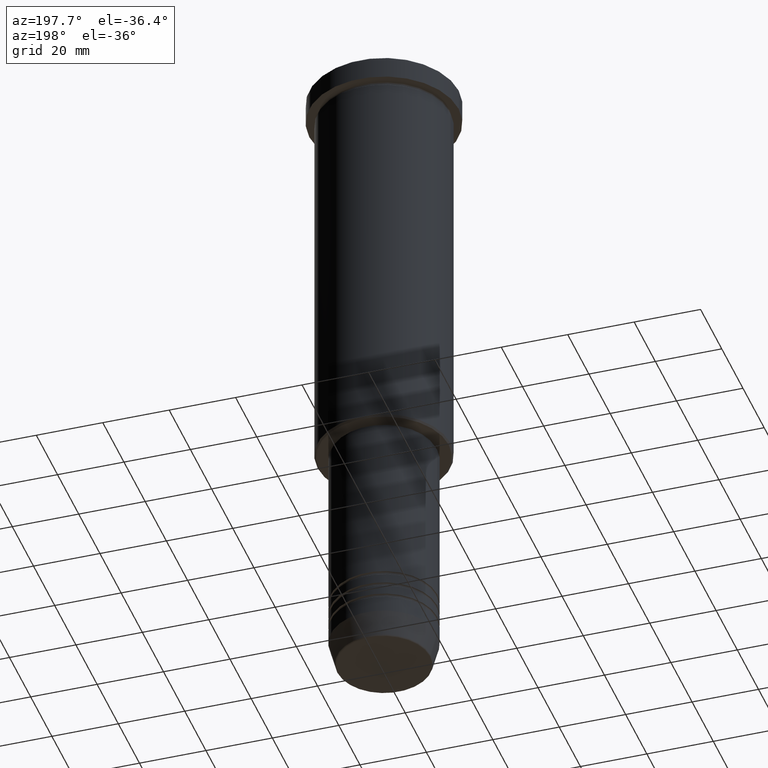
[diagram: clean part render]
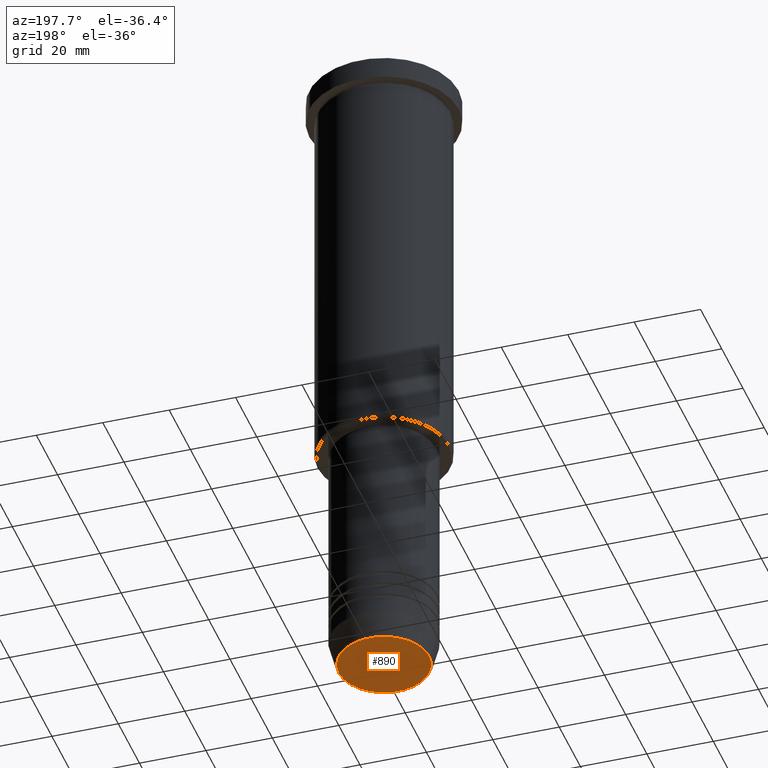
[diagram: same view with one face highlighted and labeled with its STEP entity id]
A machine part, auxiliary view. The second image highlights one B-rep face of the part: STEP entity #890.
In plain terms, the highlighted planar face has unit normal (0, -0, 1).
Its self-contained STEP definition (entity closure, byte-faithful):
#88 = EDGE_CURVE ( 'NONE', #261, #258, #386, .T. ) ;
#218 = DIRECTION ( 'NONE',  ( 1.000000000000000000, 0.000000000000000000, 0.000000000000000000 ) ) ;
#222 = CARTESIAN_POINT ( 'NONE',  ( 0.000000000000000000, 0.000000000000000000, -200.0000000000000000 ) ) ;
#232 = DIRECTION ( 'NONE',  ( 0.000000000000000000, -0.000000000000000000, 1.000000000000000000 ) ) ;
#258 = VERTEX_POINT ( 'NONE', #1096 ) ;
#261 = VERTEX_POINT ( 'NONE', #831 ) ;
#267 = AXIS2_PLACEMENT_3D ( 'NONE', #1176, #232, #525 ) ;
#327 = FACE_OUTER_BOUND ( 'NONE', #442, .T. ) ;
#331 = ORIENTED_EDGE ( 'NONE', *, *, #519, .T. ) ;
#386 = CIRCLE ( 'NONE', #1112, 13.60671756277710109 ) ;
#442 = EDGE_LOOP ( 'NONE', ( #469, #331 ) ) ;
#450 = PLANE ( 'NONE',  #267 ) ;
#469 = ORIENTED_EDGE ( 'NONE', *, *, #88, .T. ) ;
#482 = DIRECTION ( 'NONE',  ( 0.000000000000000000, 0.000000000000000000, -1.000000000000000000 ) ) ;
#508 = DIRECTION ( 'NONE',  ( 1.000000000000000000, 0.000000000000000000, 0.000000000000000000 ) ) ;
#519 = EDGE_CURVE ( 'NONE', #258, #261, #541, .T. ) ;
#525 = DIRECTION ( 'NONE',  ( 1.000000000000000000, 0.000000000000000000, 0.000000000000000000 ) ) ;
#541 = CIRCLE ( 'NONE', #657, 13.60671756277710109 ) ;
#600 = DIRECTION ( 'NONE',  ( 0.000000000000000000, 0.000000000000000000, -1.000000000000000000 ) ) ;
#657 = AXIS2_PLACEMENT_3D ( 'NONE', #1035, #482, #218 ) ;
#831 = CARTESIAN_POINT ( 'NONE',  ( 13.60671756277710109, 0.000000000000000000, -200.0000000000000000 ) ) ;
#890 = ADVANCED_FACE ( 'NONE', ( #327 ), #450, .F. ) ;
#1035 = CARTESIAN_POINT ( 'NONE',  ( 0.000000000000000000, 0.000000000000000000, -200.0000000000000000 ) ) ;
#1096 = CARTESIAN_POINT ( 'NONE',  ( -13.60671756277710109, 1.695915260300172047E-15, -200.0000000000000000 ) ) ;
#1112 = AXIS2_PLACEMENT_3D ( 'NONE', #222, #600, #508 ) ;
#1176 = CARTESIAN_POINT ( 'NONE',  ( 0.000000000000000000, 0.000000000000000000, -200.0000000000000000 ) ) ;